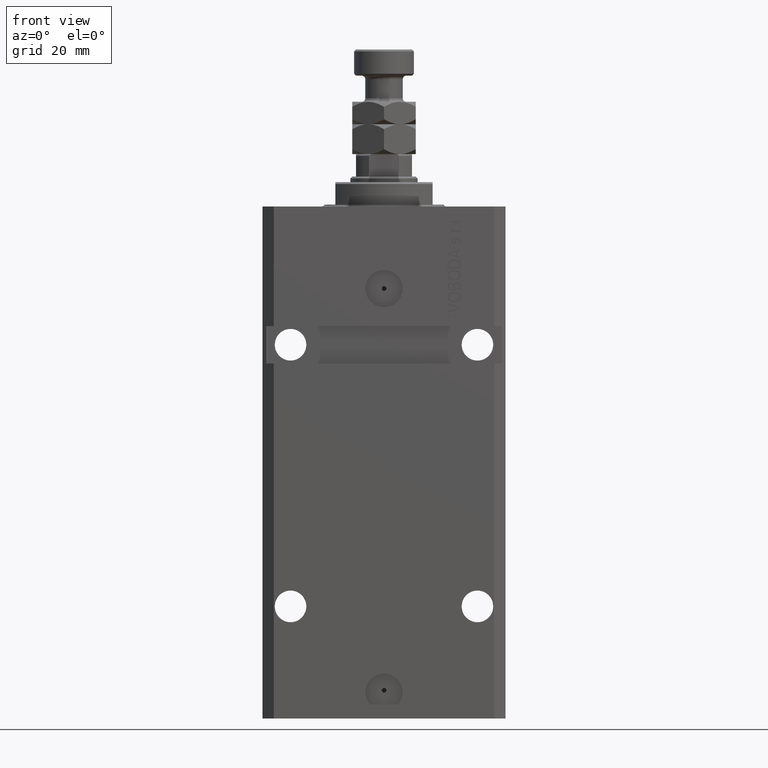
[diagram: clean part render]
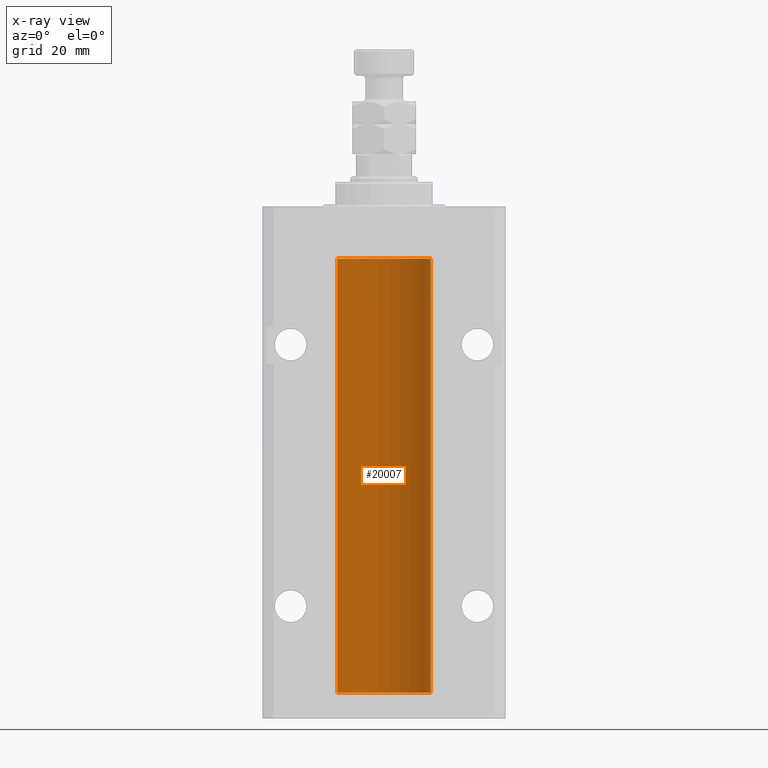
[diagram: x-ray — body ghosted, one internal face saturated and labeled with its STEP entity id]
A machine part, front view, then the same camera in x-ray: the body is ghosted and one INTERNAL B-rep face — a face not visible from any outside direction — is saturated and labeled: STEP entity #20007.
In plain terms, the highlighted cylindrical surface (partial cylindrical patch) has radius 12.5 mm, axis along (0, 0, 1).
Its self-contained STEP definition (entity closure, byte-faithful):
#161 = CARTESIAN_POINT ( 'NONE',  ( -12.49999999999999467, 0.1631761135151251485, -125.6249999999999005 ) ) ;
#641 = CARTESIAN_POINT ( 'NONE',  ( 12.50000000000017941, 3.868073565084946818E-13, -21.37499999999641176 ) ) ;
#783 = CARTESIAN_POINT ( 'NONE',  ( -12.50000000000000000, 0.08260426088729219685, -21.37500000000000000 ) ) ;
#997 = CARTESIAN_POINT ( 'NONE',  ( 12.48520578595314845, 0.6087855079133684955, -21.83656717509346024 ) ) ;
#1018 = CARTESIAN_POINT ( 'NONE',  ( -12.49625855304193678, 0.3150454781038042329, -21.45402800297484802 ) ) ;
#1081 = VERTEX_POINT ( 'NONE', #37502 ) ;
#1571 = CARTESIAN_POINT ( 'NONE',  ( 12.48436522214846711, 0.6250000000078859141, -124.9999999999992326 ) ) ;
#1625 = ORIENTED_EDGE ( 'NONE', *, *, #45757, .T. ) ;
#1774 = AXIS2_PLACEMENT_3D ( 'NONE', #12047, #29711, #44259 ) ;
#2086 = CARTESIAN_POINT ( 'NONE',  ( 12.50000000000000000, 0.000000000000000000, -13.99999999999999822 ) ) ;
#2212 = DIRECTION ( 'NONE',  ( 0.000000000000000000, 0.000000000000000000, 1.000000000000000000 ) ) ;
#2336 = CARTESIAN_POINT ( 'NONE',  ( -12.50000000000000000, -1.890568805888175348E-14, -124.3750000000000000 ) ) ;
#2358 = VERTEX_POINT ( 'NONE', #30089 ) ;
#2375 = ORIENTED_EDGE ( 'NONE', *, *, #42964, .T. ) ;
#2652 = CARTESIAN_POINT ( 'NONE',  ( 12.49625698805480845, 0.3151108292486959339, -125.5459369568817038 ) ) ;
#3013 = CARTESIAN_POINT ( 'NONE',  ( 12.49625698805480667, 0.3151108292486967666, -22.54593695688170385 ) ) ;
#3508 = CARTESIAN_POINT ( 'NONE',  ( -12.48520330846398174, 0.6088355886774048376, -125.1632543185256310 ) ) ;
#3866 = CARTESIAN_POINT ( 'NONE',  ( 12.49631206032075958, 0.3252904079142808214, -21.44139700214925526 ) ) ;
#3983 = CARTESIAN_POINT ( 'NONE',  ( 12.50000000000000000, -1.470318446642941360E-15, -22.62500000000000000 ) ) ;
#4102 = CARTESIAN_POINT ( 'NONE',  ( 12.49012055744648997, 0.5002956126655976332, -21.61641710202404454 ) ) ;
#4122 = CARTESIAN_POINT ( 'NONE',  ( -12.48436376893640443, 0.6250290278979917513, -22.08132082824473486 ) ) ;
#4340 = CARTESIAN_POINT ( 'NONE',  ( 12.49999999999999112, 0.1631389616600879555, -21.37500000000019185 ) ) ;
#4590 = CARTESIAN_POINT ( 'NONE',  ( -12.48809959379011403, 0.5462151254764975317, -22.31461370481611795 ) ) ;
#4846 = CARTESIAN_POINT ( 'NONE',  ( -12.50000000000017941, 3.883381307462307207E-13, -125.6250000000035953 ) ) ;
#4995 = CARTESIAN_POINT ( 'NONE',  ( -12.50000000000000000, 1.530808498934191521E-15, -130.0999999999999943 ) ) ;
#5385 = CARTESIAN_POINT ( 'NONE',  ( 12.50000000000000000, 0.000000000000000000, -130.0999999999999943 ) ) ;
#6218 = CARTESIAN_POINT ( 'NONE',  ( 12.49915742890631876, 0.1636982395582410321, -125.6087239784702518 ) ) ;
#7466 = CARTESIAN_POINT ( 'NONE',  ( -12.48520330846397819, 0.6088355886774127201, -22.16325431852561323 ) ) ;
#7709 = CARTESIAN_POINT ( 'NONE',  ( -12.50000000000000000, -1.890568805888175348E-14, -124.3750000000000000 ) ) ;
#8053 = EDGE_CURVE ( 'NONE', #2358, #24883, #34485, .T. ) ;
#8143 = CARTESIAN_POINT ( 'NONE',  ( 12.48436522214846889, 0.6250000000078781426, -21.99999999999923261 ) ) ;
#8178 = ORIENTED_EDGE ( 'NONE', *, *, #8053, .T. ) ;
#9239 = CARTESIAN_POINT ( 'NONE',  ( -12.49422197749723829, 0.3843754434364221040, -124.5004709956809705 ) ) ;
#9552 = CARTESIAN_POINT ( 'NONE',  ( 12.50000000000000000, 5.055633433180616021E-15, -125.6250000000000142 ) ) ;
#9783 = CARTESIAN_POINT ( 'NONE',  ( 12.50000000000000000, 5.055633433180616021E-15, -125.6250000000000142 ) ) ;
#10265 = ORIENTED_EDGE ( 'NONE', *, *, #31386, .T. ) ;
#10979 = EDGE_CURVE ( 'NONE', #2358, #14766, #42885, .T. ) ;
#11087 = CARTESIAN_POINT ( 'NONE',  ( 12.48809900631782099, 0.5573988467445639694, -22.32640147935474317 ) ) ;
#11205 = LINE ( 'NONE', #25732, #26623 ) ;
#11243 = CARTESIAN_POINT ( 'NONE',  ( 12.50000000000017941, 3.868073565084946818E-13, -21.37499999999641176 ) ) ;
#11264 = CARTESIAN_POINT ( 'NONE',  ( -12.50000000000017941, 3.883381646606358354E-13, -22.62500000000358824 ) ) ;
#11487 = VERTEX_POINT ( 'NONE', #32006 ) ;
#11686 = VECTOR ( 'NONE', #45442, 1000.000000000000000 ) ;
#12047 = CARTESIAN_POINT ( 'NONE',  ( 0.000000000000000000, 0.000000000000000000, -130.0999999999999943 ) ) ;
#12129 = VECTOR ( 'NONE', #19540, 1000.000000000000000 ) ;
#12642 = EDGE_CURVE ( 'NONE', #26327, #36334, #36927, .T. ) ;
#12693 = CARTESIAN_POINT ( 'NONE',  ( 0.000000000000000000, 0.000000000000000000, -13.99999999999999822 ) ) ;
#12756 = CARTESIAN_POINT ( 'NONE',  ( 12.48436522214887745, 0.6249999999996828093, -124.9184733946234758 ) ) ;
#12888 = CARTESIAN_POINT ( 'NONE',  ( 12.49421963472024544, 0.3844519291903631952, -125.4994730364704907 ) ) ;
#12994 = DIRECTION ( 'NONE',  ( -0.000000000000000000, -0.000000000000000000, 1.000000000000000000 ) ) ;
#13176 = EDGE_CURVE ( 'NONE', #35114, #36601, #26196, .T. ) ;
#13234 = DIRECTION ( 'NONE',  ( 1.000000000000000000, 0.000000000000000000, 0.000000000000000000 ) ) ;
#13595 = CARTESIAN_POINT ( 'NONE',  ( 12.48436522214885613, 0.6250000000001550982, -125.1631274754030585 ) ) ;
#13877 = B_SPLINE_CURVE_WITH_KNOTS ( 'NONE', 3,
 ( #32972, #783, #15079, #1018, #40132, #21992, #25790, #4122, #7466, #4590, #29392, #40596, #26268, #11264 ),
 .UNSPECIFIED., .F., .F.,
 ( 4, 2, 2, 2, 2, 2, 4 ),
 ( 2.030551168097110502E-20, 0.0002442924852390969078, 0.0004885849704781938157, 0.0009771699409563880650, 0.001221462426195485135, 0.001465754911434582423, 0.001954339881912776130 ),
 .UNSPECIFIED. ) ;
#14225 = CARTESIAN_POINT ( 'NONE',  ( -12.49631005746706691, 0.3253680783018559897, -125.5585674046538998 ) ) ;
#14304 = DIRECTION ( 'NONE',  ( -0.000000000000000000, -0.000000000000000000, 1.000000000000000000 ) ) ;
#14766 = VERTEX_POINT ( 'NONE', #38732 ) ;
#15079 = CARTESIAN_POINT ( 'NONE',  ( -12.49915784441386890, 0.1636601911727947889, -21.39126818989430490 ) ) ;
#16605 = CARTESIAN_POINT ( 'NONE',  ( 12.48436522214846889, 0.6250000000078781426, -21.99999999999923261 ) ) ;
#16650 = LINE ( 'NONE', #4995, #12129 ) ;
#16827 = DIRECTION ( 'NONE',  ( -0.000000000000000000, -0.000000000000000000, 1.000000000000000000 ) ) ;
#16883 = VERTEX_POINT ( 'NONE', #3983 ) ;
#17440 = B_SPLINE_CURVE_WITH_KNOTS ( 'NONE', 3,
 ( #9552, #45805, #6218, #2652, #12888, #46275, #13595, #27433 ),
 .UNSPECIFIED., .F., .F.,
 ( 4, 2, 2, 4 ),
 ( 4.913018323501965315E-18, 0.0002443481056285863075, 0.0004886962112571676276, 0.0009773924225142717210 ),
 .UNSPECIFIED. ) ;
#17756 = CARTESIAN_POINT ( 'NONE',  ( -12.50000000000017941, 3.883381646606358354E-13, -22.62500000000358824 ) ) ;
#17791 = EDGE_LOOP ( 'NONE', ( #44871, #29139, #8178, #45613, #42932, #2375, #1625, #26844, #42543, #10265, #32316, #19601, #33966, #46483 ) ) ;
#18016 = CARTESIAN_POINT ( 'NONE',  ( 12.50000000000000000, -1.470318446642941360E-15, -22.62500000000000000 ) ) ;
#18407 = CARTESIAN_POINT ( 'NONE',  ( 12.48436522214888100, 0.6249999999996762590, -21.91847339462350774 ) ) ;
#19044 = EDGE_CURVE ( 'NONE', #35114, #42370, #43464, .T. ) ;
#19326 = CARTESIAN_POINT ( 'NONE',  ( -12.50000000000017941, 3.883381307462307207E-13, -125.6250000000035953 ) ) ;
#19450 = LINE ( 'NONE', #5385, #11686 ) ;
#19540 = DIRECTION ( 'NONE',  ( -0.000000000000000000, -0.000000000000000000, 1.000000000000000000 ) ) ;
#19601 = ORIENTED_EDGE ( 'NONE', *, *, #46195, .T. ) ;
#20007 = ADVANCED_FACE ( 'NONE', ( #27303 ), #31599, .F. ) ;
#21992 = CARTESIAN_POINT ( 'NONE',  ( -12.48810268015257563, 0.5573155909661349217, -21.67347410093867666 ) ) ;
#23360 = DIRECTION ( 'NONE',  ( -0.000000000000000000, -0.000000000000000000, 1.000000000000000000 ) ) ;
#24883 = VERTEX_POINT ( 'NONE', #9783 ) ;
#24935 = CARTESIAN_POINT ( 'NONE',  ( 12.50000000000017941, 3.868073647803008074E-13, -124.3749999999964047 ) ) ;
#25370 = VECTOR ( 'NONE', #16827, 1000.000000000000000 ) ;
#25389 = CARTESIAN_POINT ( 'NONE',  ( 12.48436522214885969, 0.6250000000001448841, -22.16312747540307271 ) ) ;
#25732 = CARTESIAN_POINT ( 'NONE',  ( -12.50000000000000000, 1.530808498934191521E-15, -130.0999999999999943 ) ) ;
#25790 = CARTESIAN_POINT ( 'NONE',  ( -12.48436813453758454, 0.6249418250771192618, -21.83668996798922635 ) ) ;
#26196 = LINE ( 'NONE', #43637, #36863 ) ;
#26268 = CARTESIAN_POINT ( 'NONE',  ( -12.49999999999999289, 0.1631761135151241215, -22.62499999999984013 ) ) ;
#26327 = VERTEX_POINT ( 'NONE', #16605 ) ;
#26347 = CARTESIAN_POINT ( 'NONE',  ( 12.49012055744648642, 0.5002956126656095126, -124.6164171020240445 ) ) ;
#26550 = VERTEX_POINT ( 'NONE', #29217 ) ;
#26623 = VECTOR ( 'NONE', #37673, 1000.000000000000000 ) ;
#26844 = ORIENTED_EDGE ( 'NONE', *, *, #12642, .T. ) ;
#27300 = CARTESIAN_POINT ( 'NONE',  ( 12.48520578595315023, 0.6087855079133756009, -124.8365671750934780 ) ) ;
#27303 = FACE_OUTER_BOUND ( 'NONE', #17791, .T. ) ;
#27354 = CARTESIAN_POINT ( 'NONE',  ( -12.49915784441387068, 0.1636601911727856851, -124.3912681898942765 ) ) ;
#27402 = LINE ( 'NONE', #45307, #29152 ) ;
#27433 = CARTESIAN_POINT ( 'NONE',  ( 12.48436522214846711, 0.6250000000078859141, -124.9999999999992326 ) ) ;
#28056 = CARTESIAN_POINT ( 'NONE',  ( -12.50000000000000178, 0.08260426088727608473, -124.3749999999999858 ) ) ;
#28975 = CARTESIAN_POINT ( 'NONE',  ( 12.49915742890631876, 0.1636982395582437522, -22.60872397847025539 ) ) ;
#29139 = ORIENTED_EDGE ( 'NONE', *, *, #10979, .F. ) ;
#29152 = VECTOR ( 'NONE', #23360, 1000.000000000000000 ) ;
#29217 = CARTESIAN_POINT ( 'NONE',  ( 12.48436522214846711, 0.6250000000078859141, -124.9999999999992326 ) ) ;
#29229 = EDGE_CURVE ( 'NONE', #14766, #42370, #16650, .T. ) ;
#29392 = CARTESIAN_POINT ( 'NONE',  ( -12.49011732893843529, 0.5003763274120274218, -22.38348111289287701 ) ) ;
#29711 = DIRECTION ( 'NONE',  ( 0.000000000000000000, 0.000000000000000000, 1.000000000000000000 ) ) ;
#30047 = VERTEX_POINT ( 'NONE', #2086 ) ;
#30089 = CARTESIAN_POINT ( 'NONE',  ( 12.50000000000000000, 0.000000000000000000, -130.0999999999999943 ) ) ;
#31386 = EDGE_CURVE ( 'NONE', #30047, #1081, #39623, .T. ) ;
#31414 = CARTESIAN_POINT ( 'NONE',  ( -12.48810268015257563, 0.5573155909661203777, -124.6734741009386909 ) ) ;
#31599 = CYLINDRICAL_SURFACE ( 'NONE', #36189, 12.50000000000000000 ) ;
#31983 = EDGE_CURVE ( 'NONE', #26550, #34703, #44926, .T. ) ;
#32006 = CARTESIAN_POINT ( 'NONE',  ( -12.50000000000000000, -2.089494013101375120E-17, -21.37499999999999645 ) ) ;
#32316 = ORIENTED_EDGE ( 'NONE', *, *, #33167, .F. ) ;
#32972 = CARTESIAN_POINT ( 'NONE',  ( -12.50000000000000000, -2.089494013101375120E-17, -21.37499999999999645 ) ) ;
#33167 = EDGE_CURVE ( 'NONE', #11487, #1081, #11205, .T. ) ;
#33517 = CARTESIAN_POINT ( 'NONE',  ( 12.48810305280568222, 0.5461368461738498326, -124.6852546614267538 ) ) ;
#33966 = ORIENTED_EDGE ( 'NONE', *, *, #13176, .F. ) ;
#34485 = LINE ( 'NONE', #38303, #25370 ) ;
#34645 = DIRECTION ( 'NONE',  ( 1.000000000000000000, 0.000000000000000000, 0.000000000000000000 ) ) ;
#34703 = VERTEX_POINT ( 'NONE', #24935 ) ;
#35114 = VERTEX_POINT ( 'NONE', #7709 ) ;
#35930 = CARTESIAN_POINT ( 'NONE',  ( -12.48809959379011758, 0.5462151254764870956, -125.3146137048161677 ) ) ;
#36189 = AXIS2_PLACEMENT_3D ( 'NONE', #45912, #12994, #13234 ) ;
#36334 = VERTEX_POINT ( 'NONE', #641 ) ;
#36528 = CARTESIAN_POINT ( 'NONE',  ( 12.48810305280568222, 0.5461368461738448365, -21.68525466142676805 ) ) ;
#36601 = VERTEX_POINT ( 'NONE', #17756 ) ;
#36609 = CARTESIAN_POINT ( 'NONE',  ( 12.49999999999999822, 0.08262306818362555316, -22.62499999999997513 ) ) ;
#36863 = VECTOR ( 'NONE', #14304, 1000.000000000000000 ) ;
#36927 = B_SPLINE_CURVE_WITH_KNOTS ( 'NONE', 3,
 ( #8143, #18407, #997, #36528, #4102, #3866, #4340, #11243 ),
 .UNSPECIFIED., .F., .F.,
 ( 4, 2, 2, 4 ),
 ( 0.0009773924225142506875, 0.001221629287363794770, 0.001465866152213338852, 0.001954339881912434389 ),
 .UNSPECIFIED. ) ;
#37502 = CARTESIAN_POINT ( 'NONE',  ( -12.50000000000000000, 1.530808498934191521E-15, -13.99999999999999822 ) ) ;
#37673 = DIRECTION ( 'NONE',  ( -0.000000000000000000, -0.000000000000000000, 1.000000000000000000 ) ) ;
#38303 = CARTESIAN_POINT ( 'NONE',  ( 12.50000000000000000, 0.000000000000000000, -130.0999999999999943 ) ) ;
#38732 = CARTESIAN_POINT ( 'NONE',  ( -12.50000000000000000, 1.530808498934191521E-15, -130.0999999999999943 ) ) ;
#39250 = CARTESIAN_POINT ( 'NONE',  ( 12.49421963472024366, 0.3844519291903583103, -22.49947303647044805 ) ) ;
#39623 = CIRCLE ( 'NONE', #44859, 12.50000000000000000 ) ;
#39956 = CARTESIAN_POINT ( 'NONE',  ( 12.48436522214846889, 0.6250000000078781426, -21.99999999999923261 ) ) ;
#40132 = CARTESIAN_POINT ( 'NONE',  ( -12.49422197749724006, 0.3843754434364375916, -21.50047099568095277 ) ) ;
#40596 = CARTESIAN_POINT ( 'NONE',  ( -12.49631005746706336, 0.3253680783018528255, -22.55856740465392463 ) ) ;
#41163 = B_SPLINE_CURVE_WITH_KNOTS ( 'NONE', 3,
 ( #18016, #36609, #28975, #3013, #39250, #11087, #25389, #39956 ),
 .UNSPECIFIED., .F., .F.,
 ( 4, 2, 2, 4 ),
 ( 2.576359803311334014E-18, 0.0002443481056285645150, 0.0004886962112571264279, 0.0009773924225142506875 ),
 .UNSPECIFIED. ) ;
#41388 = CARTESIAN_POINT ( 'NONE',  ( 12.49631206032075781, 0.3252904079142953098, -124.4413970021492872 ) ) ;
#41607 = EDGE_CURVE ( 'NONE', #36334, #30047, #27402, .T. ) ;
#41858 = CARTESIAN_POINT ( 'NONE',  ( 12.49999999999999467, 0.1631389616600898151, -124.3750000000002274 ) ) ;
#41920 = CARTESIAN_POINT ( 'NONE',  ( -12.49625855304193855, 0.3150454781037954621, -124.4540280029748658 ) ) ;
#42370 = VERTEX_POINT ( 'NONE', #19326 ) ;
#42543 = ORIENTED_EDGE ( 'NONE', *, *, #41607, .T. ) ;
#42885 = CIRCLE ( 'NONE', #1774, 12.50000000000000000 ) ;
#42932 = ORIENTED_EDGE ( 'NONE', *, *, #31983, .T. ) ;
#42964 = EDGE_CURVE ( 'NONE', #34703, #16883, #19450, .T. ) ;
#43310 = CARTESIAN_POINT ( 'NONE',  ( -12.49011732893843707, 0.5003763274120269777, -125.3834811128928806 ) ) ;
#43464 = B_SPLINE_CURVE_WITH_KNOTS ( 'NONE', 3,
 ( #2336, #28056, #27354, #41920, #9239, #31414, #45961, #44427, #3508, #35930, #43310, #14225, #161, #4846 ),
 .UNSPECIFIED., .F., .F.,
 ( 4, 2, 2, 2, 2, 2, 4 ),
 ( 3.496117753580553008E-18, 0.0002442924852390892100, 0.0004885849704781749505, 0.0009771699409563759219, 0.001221462426195476462, 0.001465754911434576785, 0.001954339881912777865 ),
 .UNSPECIFIED. ) ;
#43637 = CARTESIAN_POINT ( 'NONE',  ( -12.50000000000000000, 1.530808498934191521E-15, -130.0999999999999943 ) ) ;
#44259 = DIRECTION ( 'NONE',  ( 1.000000000000000000, 0.000000000000000000, 0.000000000000000000 ) ) ;
#44287 = EDGE_CURVE ( 'NONE', #24883, #26550, #17440, .T. ) ;
#44427 = CARTESIAN_POINT ( 'NONE',  ( -12.48436376893640265, 0.6250290278979852010, -125.0813208282447135 ) ) ;
#44859 = AXIS2_PLACEMENT_3D ( 'NONE', #12693, #2212, #34645 ) ;
#44871 = ORIENTED_EDGE ( 'NONE', *, *, #29229, .F. ) ;
#44926 = B_SPLINE_CURVE_WITH_KNOTS ( 'NONE', 3,
 ( #1571, #12756, #27300, #33517, #26347, #41388, #41858, #44965 ),
 .UNSPECIFIED., .F., .F.,
 ( 4, 2, 2, 4 ),
 ( 0.0009773924225142717210, 0.001221629287363824694, 0.001465866152213377450, 0.001954339881912483395 ),
 .UNSPECIFIED. ) ;
#44965 = CARTESIAN_POINT ( 'NONE',  ( 12.50000000000017941, 3.868073647803008074E-13, -124.3749999999964047 ) ) ;
#45307 = CARTESIAN_POINT ( 'NONE',  ( 12.50000000000000000, 0.000000000000000000, -130.0999999999999943 ) ) ;
#45442 = DIRECTION ( 'NONE',  ( -0.000000000000000000, -0.000000000000000000, 1.000000000000000000 ) ) ;
#45613 = ORIENTED_EDGE ( 'NONE', *, *, #44287, .T. ) ;
#45757 = EDGE_CURVE ( 'NONE', #16883, #26327, #41163, .T. ) ;
#45805 = CARTESIAN_POINT ( 'NONE',  ( 12.50000000000000000, 0.08262306818362785688, -125.6249999999999858 ) ) ;
#45912 = CARTESIAN_POINT ( 'NONE',  ( 0.000000000000000000, 0.000000000000000000, -130.0999999999999943 ) ) ;
#45961 = CARTESIAN_POINT ( 'NONE',  ( -12.48436813453758631, 0.6249418250771061611, -124.8366899679892441 ) ) ;
#46195 = EDGE_CURVE ( 'NONE', #11487, #36601, #13877, .T. ) ;
#46275 = CARTESIAN_POINT ( 'NONE',  ( 12.48809900631782099, 0.5573988467445673001, -125.3264014793547290 ) ) ;
#46483 = ORIENTED_EDGE ( 'NONE', *, *, #19044, .T. ) ;